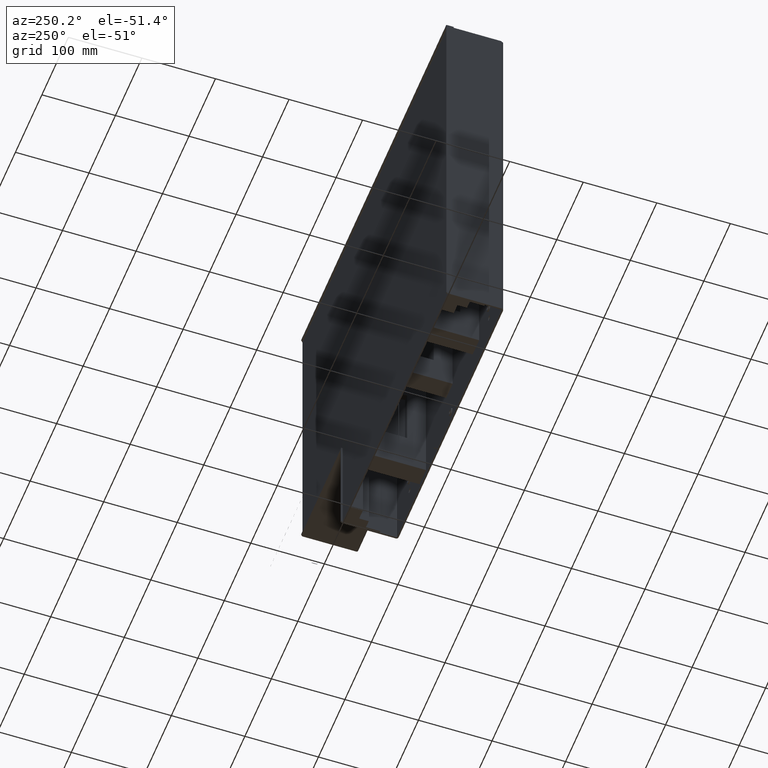
[diagram: clean part render]
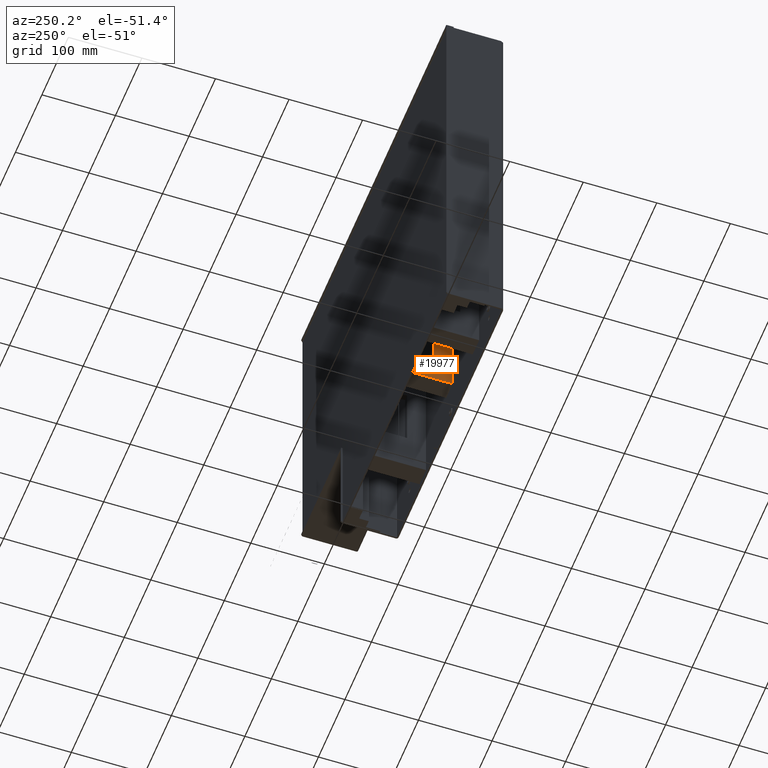
[diagram: same view with one face highlighted and labeled with its STEP entity id]
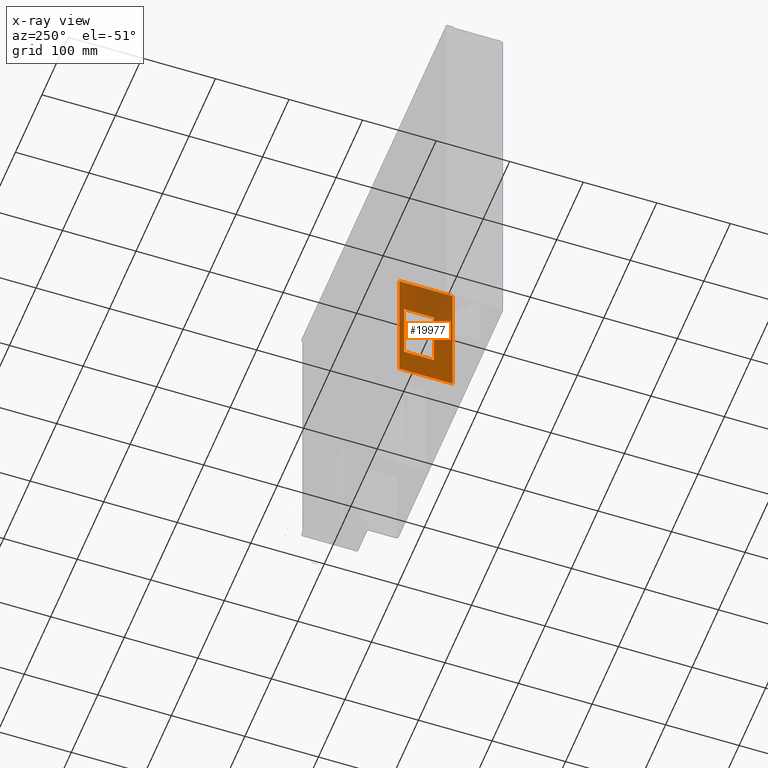
[diagram: x-ray of the same camera — body ghosted, the highlighted face saturated]
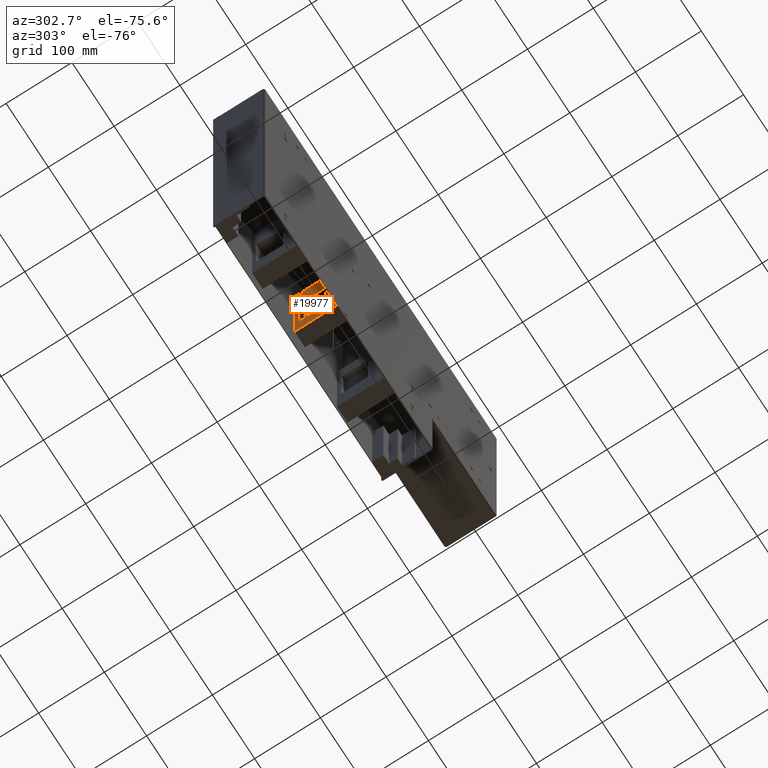
[diagram: same view with one face highlighted and labeled with its STEP entity id]
A machine part, auxiliary view. The second image highlights one B-rep face of the part: STEP entity #19977.
The next image is the same camera in x-ray: the body ghosted, the highlighted face saturated — about 45% of this face is hidden behind the body in this view.
A second angle (auxiliary view) of the same face is appended — the face is thin or edge-on in the first view.
In plain terms, the highlighted planar face has unit normal (1, 0, 0).
Its self-contained STEP definition (entity closure, byte-faithful):
#19758=DIRECTION('',(0.E0,0.E0,-1.E0));
#19759=VECTOR('',#19758,8.7E1);
#19760=CARTESIAN_POINT('',(-1.26E1,2.57E1,1.2475E2));
#19761=LINE('',#19760,#19759);
#19765=DIRECTION('',(0.E0,-1.E0,0.E0));
#19766=VECTOR('',#19765,4.05E1);
#19767=CARTESIAN_POINT('',(-1.26E1,6.62E1,1.2475E2));
#19768=LINE('',#19767,#19766);
#19772=DIRECTION('',(0.E0,0.E0,1.E0));
#19773=VECTOR('',#19772,8.7E1);
#19774=CARTESIAN_POINT('',(-1.26E1,6.62E1,3.775E1));
#19775=LINE('',#19774,#19773);
#19779=DIRECTION('',(0.E0,1.E0,0.E0));
#19780=VECTOR('',#19779,4.05E1);
#19781=CARTESIAN_POINT('',(-1.26E1,2.57E1,3.775E1));
#19782=LINE('',#19781,#19780);
#19786=DIRECTION('',(0.E0,1.E0,0.E0));
#19787=VECTOR('',#19786,7.250471515675E1);
#19788=CARTESIAN_POINT('',(-1.26E1,-4.715156749327E-3,0.E0));
#19789=LINE('',#19788,#19787);
#19793=DIRECTION('',(0.E0,0.E0,1.E0));
#19794=VECTOR('',#19793,1.796E2);
#19795=CARTESIAN_POINT('',(-1.26E1,7.25E1,0.E0));
#19796=LINE('',#19795,#19794);
#19800=DIRECTION('',(0.E0,-1.E0,0.E0));
#19801=VECTOR('',#19800,7.250471515675E1);
#19802=CARTESIAN_POINT('',(-1.26E1,7.25E1,1.796E2));
#19803=LINE('',#19802,#19801);
#19807=DIRECTION('',(0.E0,0.E0,-1.E0));
#19808=VECTOR('',#19807,1.796E2);
#19809=CARTESIAN_POINT('',(-1.26E1,-4.715156749327E-3,1.796E2));
#19810=LINE('',#19809,#19808);
#19842=CARTESIAN_POINT('',(-1.26E1,7.25E1,1.796E2));
#19843=CARTESIAN_POINT('',(-1.26E1,-4.715156749327E-3,1.796E2));
#19844=VERTEX_POINT('',#19842);
#19845=VERTEX_POINT('',#19843);
#19858=CARTESIAN_POINT('',(-1.26E1,2.57E1,1.2475E2));
#19859=CARTESIAN_POINT('',(-1.26E1,2.57E1,3.775E1));
#19860=VERTEX_POINT('',#19858);
#19861=VERTEX_POINT('',#19859);
#19862=CARTESIAN_POINT('',(-1.26E1,6.62E1,3.775E1));
#19863=VERTEX_POINT('',#19862);
#19864=CARTESIAN_POINT('',(-1.26E1,6.62E1,1.2475E2));
#19865=VERTEX_POINT('',#19864);
#19870=CARTESIAN_POINT('',(-1.26E1,-4.715156749327E-3,0.E0));
#19871=CARTESIAN_POINT('',(-1.26E1,7.25E1,0.E0));
#19872=VERTEX_POINT('',#19870);
#19873=VERTEX_POINT('',#19871);
#19956=CARTESIAN_POINT('',(-1.26E1,0.E0,0.E0));
#19957=DIRECTION('',(1.E0,0.E0,0.E0));
#19958=DIRECTION('',(0.E0,0.E0,-1.E0));
#19959=AXIS2_PLACEMENT_3D('',#19956,#19957,#19958);
#19960=PLANE('',#19959);
#19962=ORIENTED_EDGE('',*,*,#19961,.T.);
#19964=ORIENTED_EDGE('',*,*,#19963,.T.);
#19966=ORIENTED_EDGE('',*,*,#19965,.T.);
#19968=ORIENTED_EDGE('',*,*,#19967,.T.);
#19969=EDGE_LOOP('',(#19962,#19964,#19966,#19968));
#19970=FACE_OUTER_BOUND('',#19969,.F.);
#19971=ORIENTED_EDGE('',*,*,#19908,.F.);
#19972=ORIENTED_EDGE('',*,*,#19923,.F.);
#19973=ORIENTED_EDGE('',*,*,#19937,.F.);
#19974=ORIENTED_EDGE('',*,*,#19950,.F.);
#19975=EDGE_LOOP('',(#19971,#19972,#19973,#19974));
#19976=FACE_BOUND('',#19975,.F.);
#19908=EDGE_CURVE('',#19860,#19861,#19761,.T.);
#19923=EDGE_CURVE('',#19865,#19860,#19768,.T.);
#19937=EDGE_CURVE('',#19863,#19865,#19775,.T.);
#19950=EDGE_CURVE('',#19861,#19863,#19782,.T.);
#19961=EDGE_CURVE('',#19872,#19873,#19789,.T.);
#19963=EDGE_CURVE('',#19873,#19844,#19796,.T.);
#19965=EDGE_CURVE('',#19844,#19845,#19803,.T.);
#19967=EDGE_CURVE('',#19845,#19872,#19810,.T.);
#19977=ADVANCED_FACE('',(#19970,#19976),#19960,.F.);